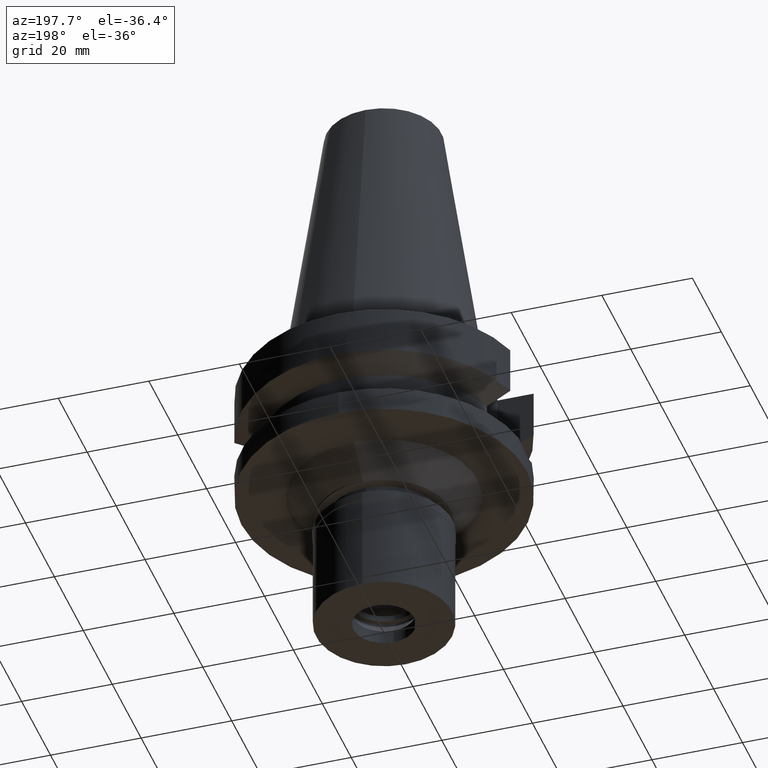
[diagram: clean part render]
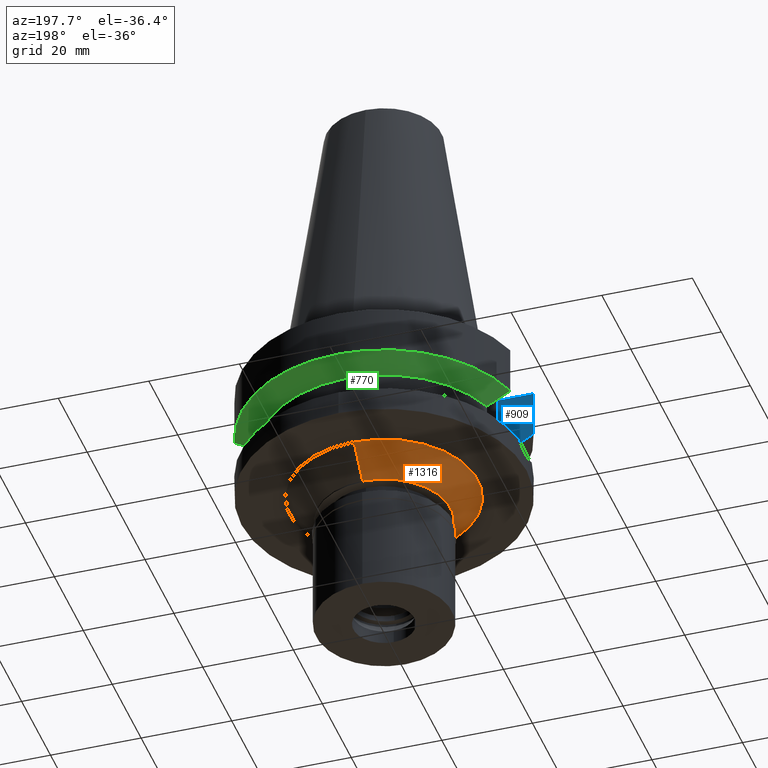
[diagram: same view with three faces highlighted in distinct colors, each labeled with its STEP entity id]
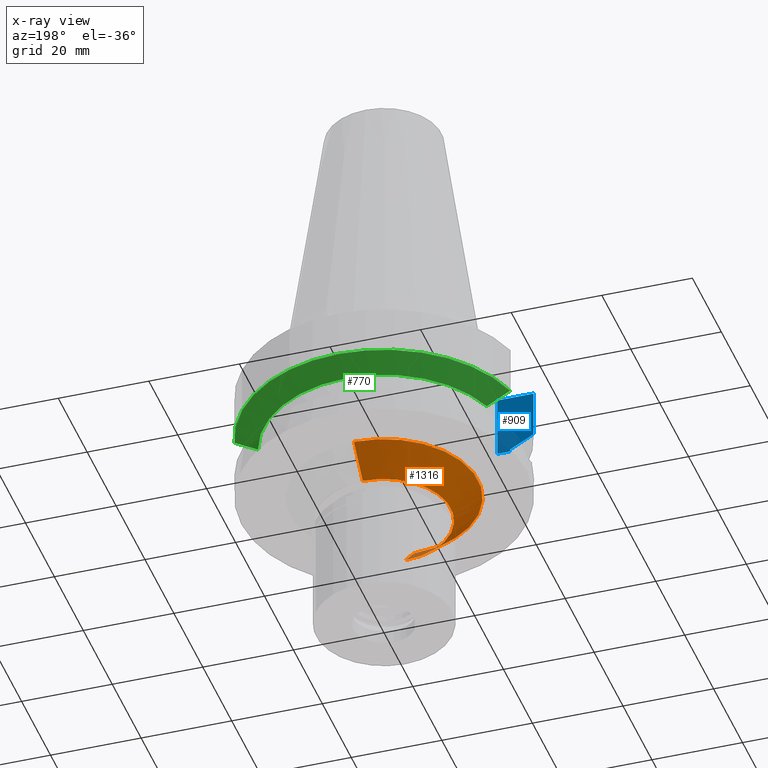
[diagram: x-ray of the same camera — body ghosted, the three highlighted faces saturated]
A machine part, auxiliary view with three faces highlighted in distinct colors.
The next image is the same camera in x-ray (body ghosted, the three faces saturated) — at least one of them is partly hidden behind the body in this view.
Their STEP definitions:

[orange] entity #1316 — the highlighted conical surface has half-angle 45 deg.
#317 = CARTESIAN_POINT ( 'NONE',  ( 0.0000000000000000000, 14.75000000000000000, -33.00000000000000000 ) ) ;
#349 = FACE_OUTER_BOUND ( 'NONE', #2037, .T. ) ;
#358 = DIRECTION ( 'NONE',  ( 0.0000000000000000000, -0.7071067811865474617, -0.7071067811865474617 ) ) ;
#392 = DIRECTION ( 'NONE',  ( 0.0000000000000000000, 0.0000000000000000000, 1.000000000000000000 ) ) ;
#491 = AXIS2_PLACEMENT_3D ( 'NONE', #821, #1798, #2022 ) ;
#670 = CARTESIAN_POINT ( 'NONE',  ( 0.0000000000000000000, 20.75000000000000000, -27.00000000000000000 ) ) ;
#821 = CARTESIAN_POINT ( 'NONE',  ( 0.0000000000000000000, 0.0000000000000000000, -27.00000000000000000 ) ) ;
#829 = CIRCLE ( 'NONE', #1216, 14.75000000000000000 ) ;
#860 = DIRECTION ( 'NONE',  ( 0.0000000000000000000, -1.000000000000000000, 0.0000000000000000000 ) ) ;
#953 = ORIENTED_EDGE ( 'NONE', *, *, #1319, .F. ) ;
#1089 = EDGE_CURVE ( 'NONE', #1468, #1860, #1279, .T. ) ;
#1169 = VECTOR ( 'NONE', #2278, 1000.000000000000114 ) ;
#1180 = VERTEX_POINT ( 'NONE', #670 ) ;
#1216 = AXIS2_PLACEMENT_3D ( 'NONE', #1346, #1785, #860 ) ;
#1279 = LINE ( 'NONE', #2034, #1169 ) ;
#1316 = ADVANCED_FACE ( 'NONE', ( #349 ), #2208, .T. ) ;
#1319 = EDGE_CURVE ( 'NONE', #1860, #2572, #829, .T. ) ;
#1346 = CARTESIAN_POINT ( 'NONE',  ( 0.0000000000000000000, 0.0000000000000000000, -33.00000000000000000 ) ) ;
#1468 = VERTEX_POINT ( 'NONE', #2482 ) ;
#1555 = ORIENTED_EDGE ( 'NONE', *, *, #2243, .T. ) ;
#1580 = EDGE_CURVE ( 'NONE', #1468, #1180, #2846, .T. ) ;
#1708 = CARTESIAN_POINT ( 'NONE',  ( 0.0000000000000000000, -14.75000000000000000, -33.00000000000000000 ) ) ;
#1785 = DIRECTION ( 'NONE',  ( 0.0000000000000000000, 0.0000000000000000000, -1.000000000000000000 ) ) ;
#1798 = DIRECTION ( 'NONE',  ( 0.0000000000000000000, 0.0000000000000000000, -1.000000000000000000 ) ) ;
#1804 = LINE ( 'NONE', #2011, #2160 ) ;
#1860 = VERTEX_POINT ( 'NONE', #1708 ) ;
#2011 = CARTESIAN_POINT ( 'NONE',  ( 0.0000000000000000000, 20.75000000000000000, -27.00000000000000000 ) ) ;
#2022 = DIRECTION ( 'NONE',  ( 0.0000000000000000000, -1.000000000000000000, 0.0000000000000000000 ) ) ;
#2034 = CARTESIAN_POINT ( 'NONE',  ( 0.0000000000000000000, -20.75000000000000000, -27.00000000000000000 ) ) ;
#2037 = EDGE_LOOP ( 'NONE', ( #953, #2050, #2678, #1555 ) ) ;
#2050 = ORIENTED_EDGE ( 'NONE', *, *, #1089, .F. ) ;
#2160 = VECTOR ( 'NONE', #358, 1000.000000000000114 ) ;
#2208 = CONICAL_SURFACE ( 'NONE', #2461, 17.75000000000000000, 0.7853981633972997312 ) ;
#2243 = EDGE_CURVE ( 'NONE', #1180, #2572, #1804, .T. ) ;
#2267 = CARTESIAN_POINT ( 'NONE',  ( 0.0000000000000000000, 0.0000000000000000000, -30.00000000000000000 ) ) ;
#2278 = DIRECTION ( 'NONE',  ( 0.0000000000000000000, 0.7071067811865474617, -0.7071067811865474617 ) ) ;
#2461 = AXIS2_PLACEMENT_3D ( 'NONE', #2267, #392, #2705 ) ;
#2482 = CARTESIAN_POINT ( 'NONE',  ( 0.0000000000000000000, -20.75000000000000000, -27.00000000000000000 ) ) ;
#2572 = VERTEX_POINT ( 'NONE', #317 ) ;
#2678 = ORIENTED_EDGE ( 'NONE', *, *, #1580, .T. ) ;
#2705 = DIRECTION ( 'NONE',  ( 0.0000000000000000000, 1.000000000000000000, 0.0000000000000000000 ) ) ;
#2846 = CIRCLE ( 'NONE', #491, 20.75000000000000000 ) ;

[blue] entity #909 — the highlighted planar face has unit normal (0, -1, 0).
#30 = ORIENTED_EDGE ( 'NONE', *, *, #2611, .F. ) ;
#63 = EDGE_CURVE ( 'NONE', #834, #2384, #2772, .T. ) ;
#100 = DIRECTION ( 'NONE',  ( 0.0000000000000000000, 0.0000000000000000000, -1.000000000000000000 ) ) ;
#117 = EDGE_CURVE ( 'NONE', #1863, #834, #927, .T. ) ;
#242 = EDGE_CURVE ( 'NONE', #2384, #1576, #1753, .T. ) ;
#273 = CARTESIAN_POINT ( 'NONE',  ( -25.24772415093999811, -8.049995353913001139, -14.45229250080999961 ) ) ;
#296 = VECTOR ( 'NONE', #492, 1000.000000000000114 ) ;
#311 = CARTESIAN_POINT ( 'NONE',  ( -31.50000000000000000, -8.050000000000000711, -14.94999999999999929 ) ) ;
#328 = PLANE ( 'NONE',  #887 ) ;
#365 = VECTOR ( 'NONE', #1208, 1000.000000000000114 ) ;
#471 = B_SPLINE_CURVE_WITH_KNOTS ( 'NONE', 3,
 ( #966, #1935, #510, #273 ),
 .UNSPECIFIED., .F., .F.,
 ( 4, 4 ),
 ( 0.0000000000000000000, 1.000000000000000000 ),
 .UNSPECIFIED. ) ;
#492 = DIRECTION ( 'NONE',  ( -2.976367120432998741E-06, 9.334973942071997916E-06, 0.9999999999519997296 ) ) ;
#500 = EDGE_CURVE ( 'NONE', #723, #1863, #1477, .T. ) ;
#510 = CARTESIAN_POINT ( 'NONE',  ( -26.83754548676969165, -8.049990697533706552, -13.57774927246590657 ) ) ;
#520 = FACE_OUTER_BOUND ( 'NONE', #1861, .T. ) ;
#667 = CARTESIAN_POINT ( 'NONE',  ( -22.50000000000000000, -8.050000000000000711, -1.000000000000000000 ) ) ;
#685 = ORIENTED_EDGE ( 'NONE', *, *, #242, .T. ) ;
#723 = VERTEX_POINT ( 'NONE', #1745 ) ;
#834 = VERTEX_POINT ( 'NONE', #2805 ) ;
#887 = AXIS2_PLACEMENT_3D ( 'NONE', #311, #1263, #100 ) ;
#909 = ADVANCED_FACE ( 'NONE', ( #520 ), #328, .F. ) ;
#925 = ORIENTED_EDGE ( 'NONE', *, *, #63, .T. ) ;
#927 = LINE ( 'NONE', #1360, #1341 ) ;
#964 = ORIENTED_EDGE ( 'NONE', *, *, #117, .T. ) ;
#966 = CARTESIAN_POINT ( 'NONE',  ( -30.45402291989999810, -8.049999254318001007, -11.56551236886000034 ) ) ;
#1079 = CARTESIAN_POINT ( 'NONE',  ( -25.24772266958000344, -8.050000000000000711, -14.94999999999999929 ) ) ;
#1187 = VECTOR ( 'NONE', #2916, 1000.000000000000000 ) ;
#1208 = DIRECTION ( 'NONE',  ( 1.865573953514989840E-08, -7.057692167361960269E-08, 0.9999999999999972244 ) ) ;
#1225 = CARTESIAN_POINT ( 'NONE',  ( -30.45402291989999810, -8.049999254318001007, -11.56551236886000034 ) ) ;
#1263 = DIRECTION ( 'NONE',  ( 0.0000000000000000000, -1.000000000000000000, 0.0000000000000000000 ) ) ;
#1341 = VECTOR ( 'NONE', #2316, 1000.000000000000000 ) ;
#1360 = CARTESIAN_POINT ( 'NONE',  ( -30.45402272279000044, -8.050000000000000711, -1.000000000000000000 ) ) ;
#1403 = CARTESIAN_POINT ( 'NONE',  ( -25.24772266958000344, -8.050000000000000711, -14.94999999999999929 ) ) ;
#1477 = LINE ( 'NONE', #1225, #365 ) ;
#1504 = CARTESIAN_POINT ( 'NONE',  ( -22.50000000000000000, -8.050000000000000711, -14.94999999999999929 ) ) ;
#1514 = ORIENTED_EDGE ( 'NONE', *, *, #500, .T. ) ;
#1576 = VERTEX_POINT ( 'NONE', #1079 ) ;
#1614 = CARTESIAN_POINT ( 'NONE',  ( -30.45402272279000044, -8.050000000000000711, -1.000000000000000000 ) ) ;
#1745 = CARTESIAN_POINT ( 'NONE',  ( -30.45402291989999810, -8.049999254318001007, -11.56551236886000034 ) ) ;
#1753 = LINE ( 'NONE', #1504, #1187 ) ;
#1861 = EDGE_LOOP ( 'NONE', ( #30, #1514, #964, #925, #685, #2453 ) ) ;
#1863 = VERTEX_POINT ( 'NONE', #1614 ) ;
#1865 = CARTESIAN_POINT ( 'NONE',  ( -22.50000000000000000, -8.050000000000000711, -14.94999999999999929 ) ) ;
#1935 = CARTESIAN_POINT ( 'NONE',  ( -28.57292264104501456, -8.049998509611727471, -12.61549642498193613 ) ) ;
#2044 = DIRECTION ( 'NONE',  ( 0.0000000000000000000, 0.0000000000000000000, -1.000000000000000000 ) ) ;
#2293 = EDGE_CURVE ( 'NONE', #1576, #2851, #2295, .T. ) ;
#2295 = LINE ( 'NONE', #1403, #296 ) ;
#2316 = DIRECTION ( 'NONE',  ( 1.000000000000000000, -3.550916904668000126E-14, 0.0000000000000000000 ) ) ;
#2384 = VERTEX_POINT ( 'NONE', #1865 ) ;
#2453 = ORIENTED_EDGE ( 'NONE', *, *, #2293, .T. ) ;
#2475 = VECTOR ( 'NONE', #2044, 1000.000000000000000 ) ;
#2611 = EDGE_CURVE ( 'NONE', #723, #2851, #471, .T. ) ;
#2772 = LINE ( 'NONE', #667, #2475 ) ;
#2805 = CARTESIAN_POINT ( 'NONE',  ( -22.50000000000000000, -8.050000000000000711, -1.000000000000000000 ) ) ;
#2851 = VERTEX_POINT ( 'NONE', #3005 ) ;
#2916 = DIRECTION ( 'NONE',  ( -1.000000000000000000, 1.551559937893000172E-14, 0.0000000000000000000 ) ) ;
#3005 = CARTESIAN_POINT ( 'NONE',  ( -25.24772415093999811, -8.049995353913001139, -14.45229250080999961 ) ) ;

[green] entity #770 — the highlighted conical surface has half-angle 60 deg.
#98 = CARTESIAN_POINT ( 'NONE',  ( -25.24772217750999914, 8.050001543296001927, -14.45224520645999888 ) ) ;
#118 = VERTEX_POINT ( 'NONE', #1155 ) ;
#143 = FACE_OUTER_BOUND ( 'NONE', #2496, .T. ) ;
#219 = CARTESIAN_POINT ( 'NONE',  ( 28.57292264826879702, 8.049998509159708604, -12.61549642101849855 ) ) ;
#428 = VERTEX_POINT ( 'NONE', #2300 ) ;
#447 = CARTESIAN_POINT ( 'NONE',  ( 26.83754549444953597, 8.049990698146890722, -13.57774926813731398 ) ) ;
#502 = CARTESIAN_POINT ( 'NONE',  ( -30.45402161783000139, 8.050004180151001165, -11.56546799966999828 ) ) ;
#577 = B_SPLINE_CURVE_WITH_KNOTS ( 'NONE', 3,
 ( #98, #1033, #733, #502 ),
 .UNSPECIFIED., .F., .F.,
 ( 4, 4 ),
 ( 0.0000000000000000000, 1.000000000000000000 ),
 .UNSPECIFIED. ) ;
#659 = VERTEX_POINT ( 'NONE', #1194 ) ;
#733 = CARTESIAN_POINT ( 'NONE',  ( -28.57295764215624345, 8.050008355219345546, -12.61547539053408329 ) ) ;
#744 = AXIS2_PLACEMENT_3D ( 'NONE', #2925, #1812, #2985 ) ;
#770 = ADVANCED_FACE ( 'NONE', ( #143 ), #2727, .T. ) ;
#890 = DIRECTION ( 'NONE',  ( 0.0000000000000000000, 0.0000000000000000000, 1.000000000000000000 ) ) ;
#908 = AXIS2_PLACEMENT_3D ( 'NONE', #1072, #1792, #1030 ) ;
#1030 = DIRECTION ( 'NONE',  ( 0.0000000000000000000, 1.000000000000000000, 0.0000000000000000000 ) ) ;
#1033 = CARTESIAN_POINT ( 'NONE',  ( -26.83758034277381554, 8.050003089924464561, -13.57772799425382182 ) ) ;
#1072 = CARTESIAN_POINT ( 'NONE',  ( 0.0000000000000000000, 0.0000000000000000000, -13.00888132564000088 ) ) ;
#1124 = CIRCLE ( 'NONE', #2507, 31.50000000000000000 ) ;
#1155 = CARTESIAN_POINT ( 'NONE',  ( 25.24772415083999988, 8.049995354218999921, -14.45229249846999942 ) ) ;
#1175 = EDGE_CURVE ( 'NONE', #659, #118, #2666, .T. ) ;
#1194 = CARTESIAN_POINT ( 'NONE',  ( 30.45402291994999899, 8.049999254093000545, -11.56551237088999962 ) ) ;
#1310 = ORIENTED_EDGE ( 'NONE', *, *, #2896, .F. ) ;
#1342 = EDGE_CURVE ( 'NONE', #2199, #118, #2064, .T. ) ;
#1600 = DIRECTION ( 'NONE',  ( 0.0000000000000000000, 1.000000000000000000, 0.0000000000000000000 ) ) ;
#1649 = EDGE_CURVE ( 'NONE', #2199, #428, #577, .T. ) ;
#1748 = ORIENTED_EDGE ( 'NONE', *, *, #1342, .F. ) ;
#1792 = DIRECTION ( 'NONE',  ( 0.0000000000000000000, 0.0000000000000000000, 1.000000000000000000 ) ) ;
#1812 = DIRECTION ( 'NONE',  ( 0.0000000000000000000, 0.0000000000000000000, -1.000000000000000000 ) ) ;
#1876 = ORIENTED_EDGE ( 'NONE', *, *, #1175, .T. ) ;
#1891 = CARTESIAN_POINT ( 'NONE',  ( 25.24772415083999988, 8.049995354218999921, -14.45229249846999942 ) ) ;
#2064 = CIRCLE ( 'NONE', #744, 26.50000000000000711 ) ;
#2199 = VERTEX_POINT ( 'NONE', #2520 ) ;
#2300 = CARTESIAN_POINT ( 'NONE',  ( -30.45402161783000139, 8.050004180151001165, -11.56546799966999828 ) ) ;
#2496 = EDGE_LOOP ( 'NONE', ( #1310, #1876, #1748, #2541 ) ) ;
#2507 = AXIS2_PLACEMENT_3D ( 'NONE', #2561, #890, #1600 ) ;
#2520 = CARTESIAN_POINT ( 'NONE',  ( -25.24772217750999914, 8.050001543296001927, -14.45224520645999888 ) ) ;
#2541 = ORIENTED_EDGE ( 'NONE', *, *, #1649, .T. ) ;
#2561 = CARTESIAN_POINT ( 'NONE',  ( 0.0000000000000000000, 0.0000000000000000000, -11.56550565266999975 ) ) ;
#2571 = CARTESIAN_POINT ( 'NONE',  ( 30.45402291994999899, 8.049999254093000545, -11.56551237088999962 ) ) ;
#2666 = B_SPLINE_CURVE_WITH_KNOTS ( 'NONE', 3,
 ( #2571, #219, #447, #1891 ),
 .UNSPECIFIED., .F., .F.,
 ( 4, 4 ),
 ( 0.0000000000000000000, 1.000000000000000000 ),
 .UNSPECIFIED. ) ;
#2727 = CONICAL_SURFACE ( 'NONE', #908, 29.00000000000000000, 1.047197551196400456 ) ;
#2896 = EDGE_CURVE ( 'NONE', #659, #428, #1124, .T. ) ;
#2925 = CARTESIAN_POINT ( 'NONE',  ( 0.0000000000000000000, 0.0000000000000000000, -14.45225699861000024 ) ) ;
#2985 = DIRECTION ( 'NONE',  ( -0.9527442516822307583, 0.3037735849057093818, 0.0000000000000000000 ) ) ;